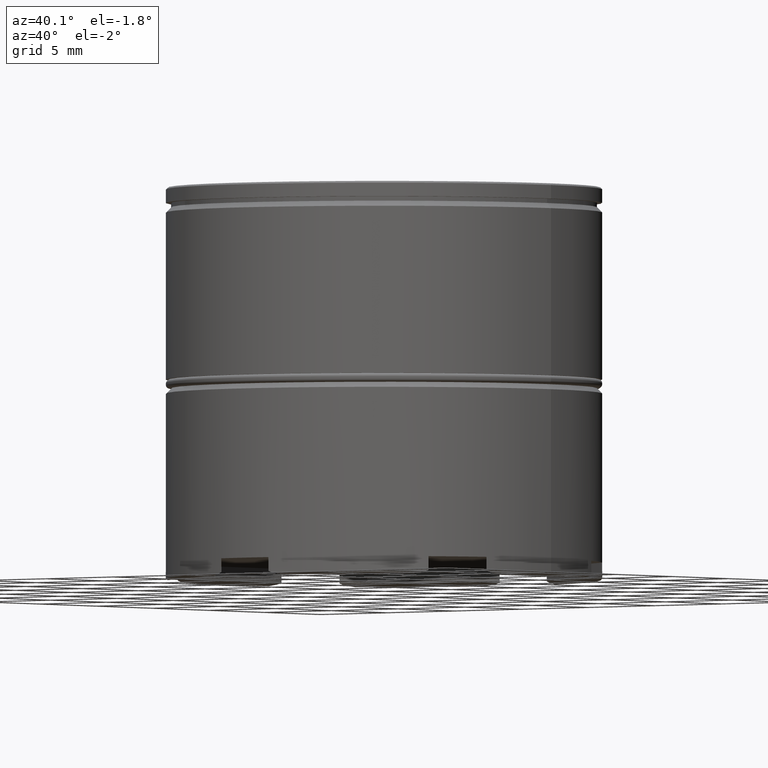
[diagram: clean part render]
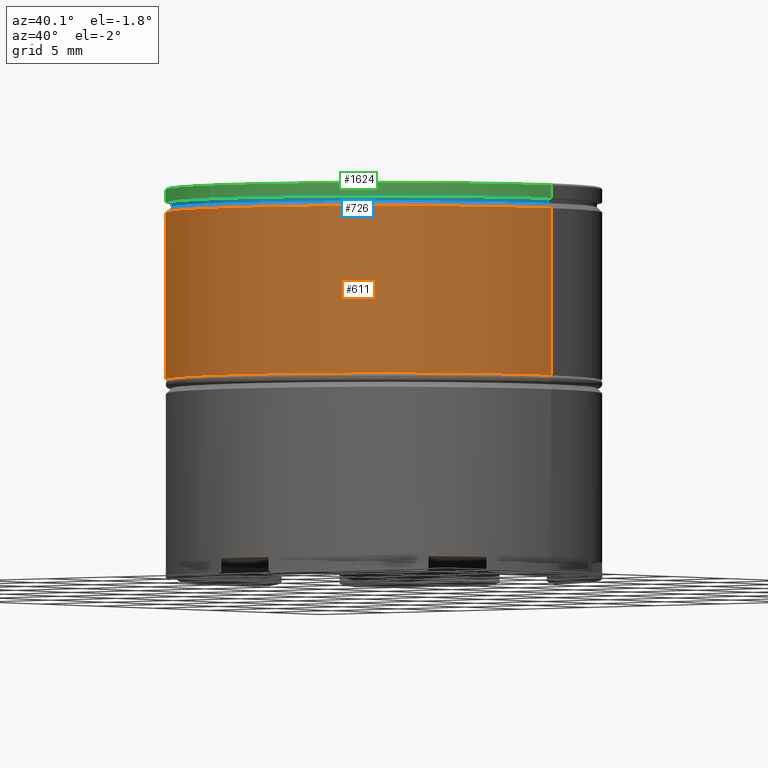
[diagram: same view with three faces highlighted in distinct colors, each labeled with its STEP entity id]
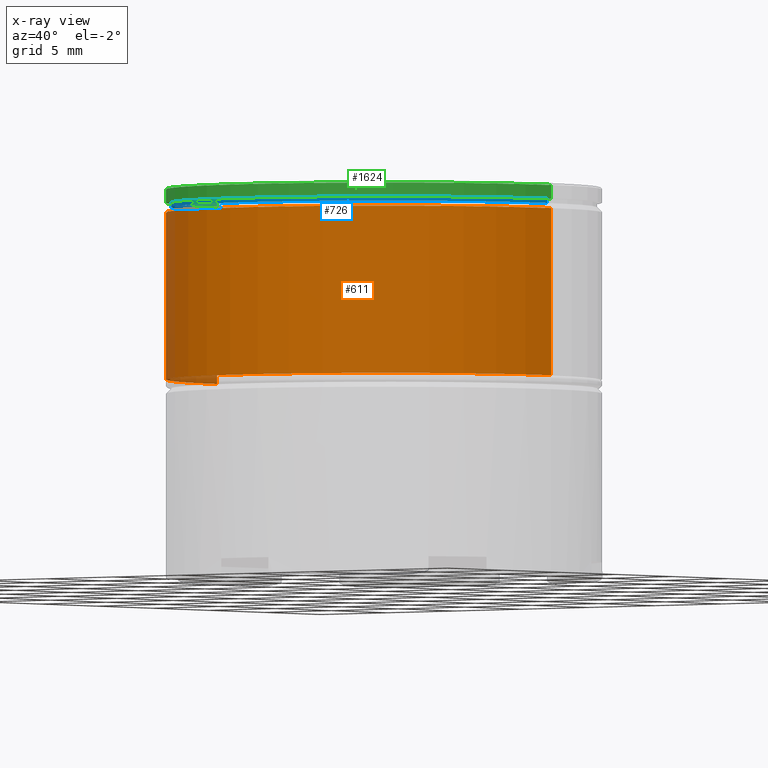
[diagram: x-ray of the same camera — body ghosted, the three highlighted faces saturated]
A machine part, auxiliary view with three faces highlighted in distinct colors.
The next image is the same camera in x-ray (body ghosted, the three faces saturated) — at least one of them is partly hidden behind the body in this view.
Their STEP definitions:

[orange] entity #611 — the highlighted cylindrical surface (partial cylindrical patch) has radius 12.5 mm, axis along (-0, -0, 1).
#93 = CYLINDRICAL_SURFACE ( 'NONE', #355, 12.50000000000000000 ) ;
#105 = ORIENTED_EDGE ( 'NONE', *, *, #1524, .T. ) ;
#108 = CIRCLE ( 'NONE', #1462, 12.50000000000000000 ) ;
#154 = EDGE_LOOP ( 'NONE', ( #1256, #189, #105, #246 ) ) ;
#189 = ORIENTED_EDGE ( 'NONE', *, *, #201, .T. ) ;
#201 = EDGE_CURVE ( 'NONE', #344, #626, #686, .T. ) ;
#246 = ORIENTED_EDGE ( 'NONE', *, *, #1105, .T. ) ;
#259 = VECTOR ( 'NONE', #375, 1000.000000000000000 ) ;
#306 = DIRECTION ( 'NONE',  ( -0.000000000000000000, -0.000000000000000000, 1.000000000000000000 ) ) ;
#321 = CARTESIAN_POINT ( 'NONE',  ( 0.000000000000000000, 0.000000000000000000, 0.000000000000000000 ) ) ;
#334 = CARTESIAN_POINT ( 'NONE',  ( -12.50000000000000000, 1.530808498934191521E-15, -1.425000000000010481 ) ) ;
#344 = VERTEX_POINT ( 'NONE', #976 ) ;
#355 = AXIS2_PLACEMENT_3D ( 'NONE', #321, #1080, #1611 ) ;
#375 = DIRECTION ( 'NONE',  ( -0.000000000000000000, -0.000000000000000000, 1.000000000000000000 ) ) ;
#404 = CARTESIAN_POINT ( 'NONE',  ( -12.50000000000000000, 1.530808498934191521E-15, 0.000000000000000000 ) ) ;
#527 = LINE ( 'NONE', #404, #259 ) ;
#575 = FACE_OUTER_BOUND ( 'NONE', #154, .T. ) ;
#576 = DIRECTION ( 'NONE',  ( -0.000000000000000000, -0.000000000000000000, 1.000000000000000000 ) ) ;
#584 = CARTESIAN_POINT ( 'NONE',  ( 12.50000000000000000, 0.000000000000000000, -11.00000000000000000 ) ) ;
#601 = CARTESIAN_POINT ( 'NONE',  ( 12.50000000000000000, 0.000000000000000000, 0.000000000000000000 ) ) ;
#611 = ADVANCED_FACE ( 'NONE', ( #575 ), #93, .T. ) ;
#626 = VERTEX_POINT ( 'NONE', #584 ) ;
#672 = DIRECTION ( 'NONE',  ( 1.000000000000000000, 0.000000000000000000, 0.000000000000000000 ) ) ;
#686 = CIRCLE ( 'NONE', #1634, 12.50000000000000000 ) ;
#741 = CARTESIAN_POINT ( 'NONE',  ( 0.000000000000000000, 0.000000000000000000, -1.425000000000010481 ) ) ;
#765 = DIRECTION ( 'NONE',  ( 1.000000000000000000, 0.000000000000000000, 0.000000000000000000 ) ) ;
#899 = VERTEX_POINT ( 'NONE', #334 ) ;
#971 = CARTESIAN_POINT ( 'NONE',  ( 12.50000000000000000, 0.000000000000000000, -1.425000000000010481 ) ) ;
#976 = CARTESIAN_POINT ( 'NONE',  ( -12.50000000000000000, 1.530808498934191521E-15, -11.00000000000000000 ) ) ;
#1076 = CARTESIAN_POINT ( 'NONE',  ( 0.000000000000000000, 0.000000000000000000, -11.00000000000000000 ) ) ;
#1079 = EDGE_CURVE ( 'NONE', #344, #899, #527, .T. ) ;
#1080 = DIRECTION ( 'NONE',  ( -0.000000000000000000, -0.000000000000000000, 1.000000000000000000 ) ) ;
#1095 = LINE ( 'NONE', #601, #1630 ) ;
#1105 = EDGE_CURVE ( 'NONE', #1281, #899, #108, .T. ) ;
#1161 = DIRECTION ( 'NONE',  ( 0.000000000000000000, 0.000000000000000000, -1.000000000000000000 ) ) ;
#1256 = ORIENTED_EDGE ( 'NONE', *, *, #1079, .F. ) ;
#1281 = VERTEX_POINT ( 'NONE', #971 ) ;
#1462 = AXIS2_PLACEMENT_3D ( 'NONE', #741, #1161, #765 ) ;
#1524 = EDGE_CURVE ( 'NONE', #626, #1281, #1095, .T. ) ;
#1611 = DIRECTION ( 'NONE',  ( 1.000000000000000000, 0.000000000000000000, 0.000000000000000000 ) ) ;
#1630 = VECTOR ( 'NONE', #576, 1000.000000000000000 ) ;
#1634 = AXIS2_PLACEMENT_3D ( 'NONE', #1076, #306, #672 ) ;

[blue] entity #726 — the highlighted cylindrical surface (partial cylindrical patch) has radius 12.2 mm, axis along (-0, -0, 1).
#3 = CARTESIAN_POINT ( 'NONE',  ( 12.20000000000000107, 0.000000000000000000, 0.000000000000000000 ) ) ;
#211 = DIRECTION ( 'NONE',  ( -0.000000000000000000, -0.000000000000000000, 1.000000000000000000 ) ) ;
#236 = LINE ( 'NONE', #3, #1486 ) ;
#285 = DIRECTION ( 'NONE',  ( -0.000000000000000000, -0.000000000000000000, 1.000000000000000000 ) ) ;
#356 = AXIS2_PLACEMENT_3D ( 'NONE', #1381, #747, #510 ) ;
#384 = CYLINDRICAL_SURFACE ( 'NONE', #356, 12.20000000000000107 ) ;
#386 = VECTOR ( 'NONE', #285, 1000.000000000000000 ) ;
#510 = DIRECTION ( 'NONE',  ( 1.000000000000000000, 0.000000000000000000, 0.000000000000000000 ) ) ;
#513 = VERTEX_POINT ( 'NONE', #800 ) ;
#585 = EDGE_CURVE ( 'NONE', #817, #1592, #1162, .T. ) ;
#692 = CIRCLE ( 'NONE', #993, 12.20000000000000107 ) ;
#720 = CIRCLE ( 'NONE', #1431, 12.20000000000000107 ) ;
#721 = ORIENTED_EDGE ( 'NONE', *, *, #1238, .T. ) ;
#726 = ADVANCED_FACE ( 'NONE', ( #880 ), #384, .T. ) ;
#730 = CARTESIAN_POINT ( 'NONE',  ( -12.20000000000000107, 1.494069094959771056E-15, -1.125000000000000222 ) ) ;
#747 = DIRECTION ( 'NONE',  ( -0.000000000000000000, -0.000000000000000000, 1.000000000000000000 ) ) ;
#800 = CARTESIAN_POINT ( 'NONE',  ( 12.20000000000000107, 0.000000000000000000, -1.125000000000000222 ) ) ;
#817 = VERTEX_POINT ( 'NONE', #730 ) ;
#828 = CARTESIAN_POINT ( 'NONE',  ( 0.000000000000000000, 0.000000000000000000, -1.125000000000000222 ) ) ;
#839 = CARTESIAN_POINT ( 'NONE',  ( 0.000000000000000000, 0.000000000000000000, -0.8749999999999998890 ) ) ;
#874 = DIRECTION ( 'NONE',  ( -0.000000000000000000, -0.000000000000000000, 1.000000000000000000 ) ) ;
#880 = FACE_OUTER_BOUND ( 'NONE', #1372, .T. ) ;
#983 = CARTESIAN_POINT ( 'NONE',  ( 12.20000000000000107, 0.000000000000000000, -0.8749999999999998890 ) ) ;
#993 = AXIS2_PLACEMENT_3D ( 'NONE', #828, #211, #1173 ) ;
#1006 = ORIENTED_EDGE ( 'NONE', *, *, #1386, .T. ) ;
#1054 = CARTESIAN_POINT ( 'NONE',  ( -12.20000000000000107, 1.494069094959771056E-15, 0.000000000000000000 ) ) ;
#1057 = EDGE_CURVE ( 'NONE', #1592, #1270, #720, .T. ) ;
#1162 = LINE ( 'NONE', #1054, #386 ) ;
#1173 = DIRECTION ( 'NONE',  ( 1.000000000000000000, 0.000000000000000000, 0.000000000000000000 ) ) ;
#1190 = CARTESIAN_POINT ( 'NONE',  ( -12.20000000000000107, 1.494069094959771056E-15, -0.8749999999999998890 ) ) ;
#1238 = EDGE_CURVE ( 'NONE', #817, #513, #692, .T. ) ;
#1260 = DIRECTION ( 'NONE',  ( -0.000000000000000000, -0.000000000000000000, 1.000000000000000000 ) ) ;
#1270 = VERTEX_POINT ( 'NONE', #983 ) ;
#1372 = EDGE_LOOP ( 'NONE', ( #1441, #721, #1006, #1437 ) ) ;
#1381 = CARTESIAN_POINT ( 'NONE',  ( 0.000000000000000000, 0.000000000000000000, 0.000000000000000000 ) ) ;
#1386 = EDGE_CURVE ( 'NONE', #513, #1270, #236, .T. ) ;
#1391 = DIRECTION ( 'NONE',  ( 1.000000000000000000, 0.000000000000000000, 0.000000000000000000 ) ) ;
#1431 = AXIS2_PLACEMENT_3D ( 'NONE', #839, #874, #1391 ) ;
#1437 = ORIENTED_EDGE ( 'NONE', *, *, #1057, .F. ) ;
#1441 = ORIENTED_EDGE ( 'NONE', *, *, #585, .F. ) ;
#1486 = VECTOR ( 'NONE', #1260, 1000.000000000000000 ) ;
#1592 = VERTEX_POINT ( 'NONE', #1190 ) ;

[green] entity #1624 — the highlighted cylindrical surface (partial cylindrical patch) has radius 12.5 mm, axis along (-0, -0, 1).
#40 = DIRECTION ( 'NONE',  ( 1.000000000000000000, 0.000000000000000000, 0.000000000000000000 ) ) ;
#78 = ORIENTED_EDGE ( 'NONE', *, *, #898, .F. ) ;
#92 = DIRECTION ( 'NONE',  ( -0.000000000000000000, -0.000000000000000000, 1.000000000000000000 ) ) ;
#96 = CARTESIAN_POINT ( 'NONE',  ( 0.000000000000000000, 0.000000000000000000, -0.1000000000000045991 ) ) ;
#233 = DIRECTION ( 'NONE',  ( -0.000000000000000000, -0.000000000000000000, 1.000000000000000000 ) ) ;
#276 = FACE_OUTER_BOUND ( 'NONE', #1298, .T. ) ;
#304 = ORIENTED_EDGE ( 'NONE', *, *, #597, .T. ) ;
#309 = CIRCLE ( 'NONE', #563, 12.50000000000000000 ) ;
#327 = DIRECTION ( 'NONE',  ( 1.000000000000000000, 0.000000000000000000, 0.000000000000000000 ) ) ;
#352 = DIRECTION ( 'NONE',  ( 0.000000000000000000, 0.000000000000000000, -1.000000000000000000 ) ) ;
#376 = DIRECTION ( 'NONE',  ( -0.000000000000000000, -0.000000000000000000, 1.000000000000000000 ) ) ;
#419 = EDGE_CURVE ( 'NONE', #768, #1027, #309, .T. ) ;
#425 = ORIENTED_EDGE ( 'NONE', *, *, #419, .T. ) ;
#447 = CARTESIAN_POINT ( 'NONE',  ( -12.50000000000000000, 1.530808498934191521E-15, 0.000000000000000000 ) ) ;
#476 = AXIS2_PLACEMENT_3D ( 'NONE', #1563, #376, #40 ) ;
#563 = AXIS2_PLACEMENT_3D ( 'NONE', #96, #352, #689 ) ;
#569 = CARTESIAN_POINT ( 'NONE',  ( 0.000000000000000000, 0.000000000000000000, -0.8749999999999998890 ) ) ;
#597 = EDGE_CURVE ( 'NONE', #656, #1104, #1533, .T. ) ;
#656 = VERTEX_POINT ( 'NONE', #1626 ) ;
#689 = DIRECTION ( 'NONE',  ( 1.000000000000000000, 0.000000000000000000, 0.000000000000000000 ) ) ;
#768 = VERTEX_POINT ( 'NONE', #1504 ) ;
#771 = ORIENTED_EDGE ( 'NONE', *, *, #865, .T. ) ;
#801 = AXIS2_PLACEMENT_3D ( 'NONE', #569, #233, #327 ) ;
#849 = CARTESIAN_POINT ( 'NONE',  ( -12.50000000000000000, 1.530808498934191521E-15, -0.1000000000000045991 ) ) ;
#865 = EDGE_CURVE ( 'NONE', #1104, #768, #1318, .T. ) ;
#898 = EDGE_CURVE ( 'NONE', #656, #1027, #1211, .T. ) ;
#970 = VECTOR ( 'NONE', #1059, 1000.000000000000000 ) ;
#1027 = VERTEX_POINT ( 'NONE', #849 ) ;
#1041 = CARTESIAN_POINT ( 'NONE',  ( 12.50000000000000000, 0.000000000000000000, 0.000000000000000000 ) ) ;
#1059 = DIRECTION ( 'NONE',  ( -0.000000000000000000, -0.000000000000000000, 1.000000000000000000 ) ) ;
#1104 = VERTEX_POINT ( 'NONE', #1156 ) ;
#1156 = CARTESIAN_POINT ( 'NONE',  ( 12.50000000000000000, 0.000000000000000000, -0.8749999999999998890 ) ) ;
#1211 = LINE ( 'NONE', #447, #1559 ) ;
#1298 = EDGE_LOOP ( 'NONE', ( #78, #304, #771, #425 ) ) ;
#1318 = LINE ( 'NONE', #1041, #970 ) ;
#1378 = CYLINDRICAL_SURFACE ( 'NONE', #476, 12.50000000000000000 ) ;
#1504 = CARTESIAN_POINT ( 'NONE',  ( 12.50000000000000000, 0.000000000000000000, -0.1000000000000045991 ) ) ;
#1533 = CIRCLE ( 'NONE', #801, 12.50000000000000000 ) ;
#1559 = VECTOR ( 'NONE', #92, 1000.000000000000000 ) ;
#1563 = CARTESIAN_POINT ( 'NONE',  ( 0.000000000000000000, 0.000000000000000000, 0.000000000000000000 ) ) ;
#1624 = ADVANCED_FACE ( 'NONE', ( #276 ), #1378, .T. ) ;
#1626 = CARTESIAN_POINT ( 'NONE',  ( -12.50000000000000000, 1.530808498934191521E-15, -0.8749999999999998890 ) ) ;